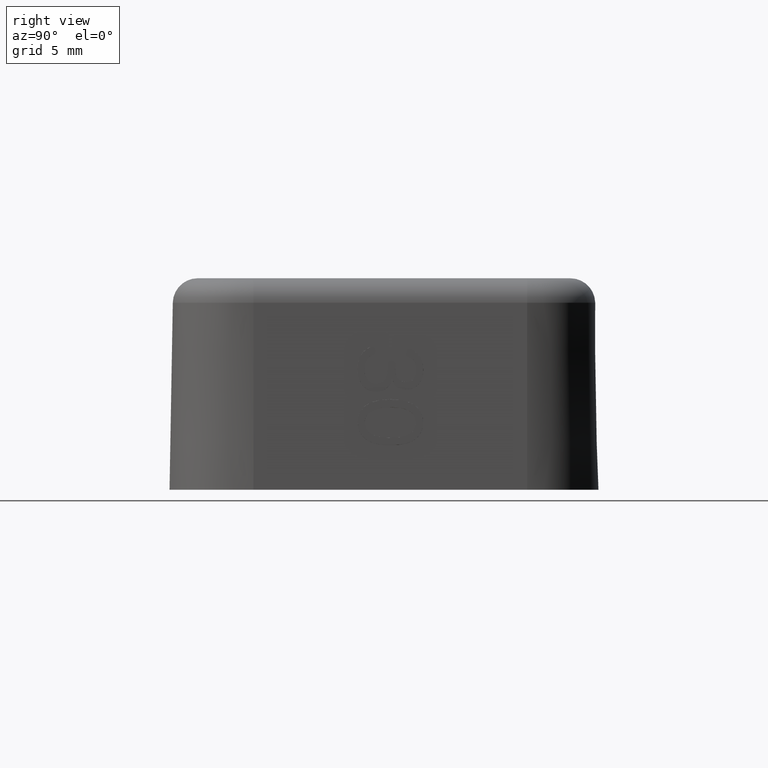
[diagram: clean part render]
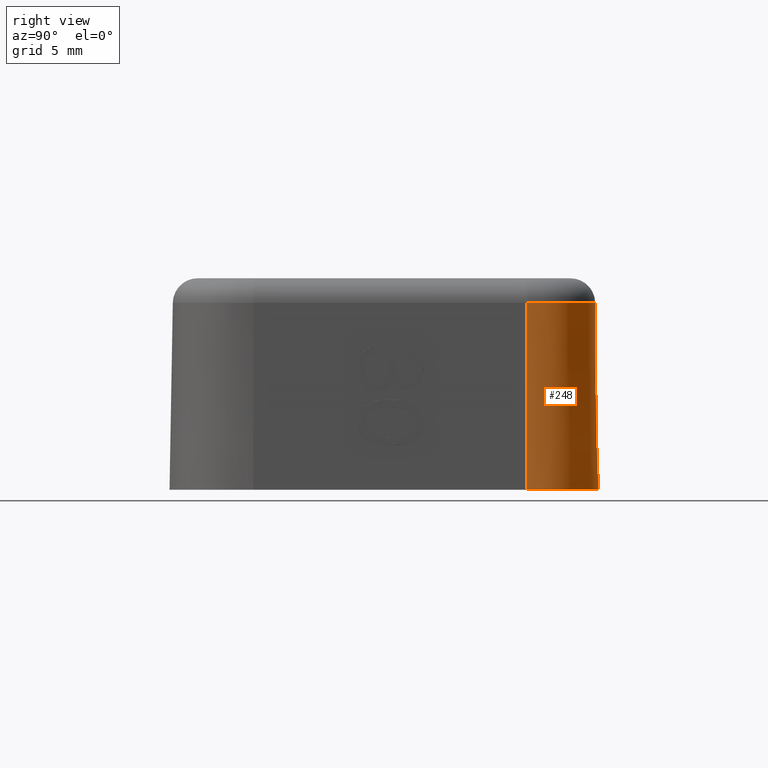
[diagram: same view with one face highlighted and labeled with its STEP entity id]
A machine part, right view. The second image highlights one B-rep face of the part: STEP entity #248.
In plain terms, the highlighted conical surface has half-angle 1 deg.
Its self-contained STEP definition (entity closure, byte-faithful):
#248=ADVANCED_FACE('',(#542),#543,.T.);
#542=FACE_OUTER_BOUND('',#955,.T.);
#543=CONICAL_SURFACE('',#956,5.45000000000053,0.0174532925199416);
#955=EDGE_LOOP('',(#2173,#2174,#2175,#2176));
#956=AXIS2_PLACEMENT_3D('',#2177,#2178,#2179);
#2173=ORIENTED_EDGE('',*,*,#3105,.T.);
#2174=ORIENTED_EDGE('',*,*,#3106,.T.);
#2175=ORIENTED_EDGE('',*,*,#3107,.F.);
#2176=ORIENTED_EDGE('',*,*,#3051,.T.);
#2177=CARTESIAN_POINT('',(16.4999999999857,26.5000000000168,17.0));
#2178=DIRECTION('',(-0.0,-0.0,-1.0));
#2179=DIRECTION('',(-1.0,0.0,0.0));
#3051=EDGE_CURVE('',#3676,#3674,#3677,.F.);
#3105=EDGE_CURVE('',#3674,#3771,#3773,.T.);
#3106=EDGE_CURVE('',#3771,#3774,#3775,.T.);
#3107=EDGE_CURVE('',#3676,#3774,#3776,.T.);
#3674=VERTEX_POINT('',#5320);
#3676=VERTEX_POINT('',#5323);
#3677=CIRCLE('',#5324,5.74673610378021);
#3771=VERTEX_POINT('',#5448);
#3773=LINE('',#5451,#5452);
#3774=VERTEX_POINT('',#5453);
#3775=CIRCLE('',#5454,5.48430086408192);
#3776=LINE('',#5455,#5456);
#5320=CARTESIAN_POINT('',(13.6266319480893,31.4768194547321,0.0));
#5323=CARTESIAN_POINT('',(22.2467361037658,26.5000000000193,0.0));
#5324=AXIS2_PLACEMENT_3D('',#5983,#5984,#5985);
#5448=CARTESIAN_POINT('',(13.7578495679387,31.2495438703052,15.0349048128745));
#5451=CARTESIAN_POINT('',(13.7749999999795,31.219838450639,17.0));
#5452=VECTOR('',#6083,1000.0);
#5453=CARTESIAN_POINT('',(21.9843008640674,26.5000000000192,15.0349048128745));
#5454=AXIS2_PLACEMENT_3D('',#6084,#6085,#6086);
#5455=CARTESIAN_POINT('',(21.9499999999861,26.5000000000192,17.0));
#5456=VECTOR('',#6087,1000.0);
#5983=CARTESIAN_POINT('',(16.4999999999857,26.5000000000168,6.93889390390723E-15));
#5984=DIRECTION('',(0.0,0.0,-1.0));
#5985=DIRECTION('',(-1.0,0.0,0.0));
#6083=DIRECTION('',(0.00872620321866073,-0.0151142273318476,0.999847695156391));
#6084=CARTESIAN_POINT('',(16.4999999999857,26.5000000000168,15.0349048128745));
#6085=DIRECTION('',(0.0,0.0,-1.0));
#6086=DIRECTION('',(-1.0,0.0,0.0));
#6087=DIRECTION('',(-0.0174524064372835,-7.75042538471428E-15,0.999847695156391));